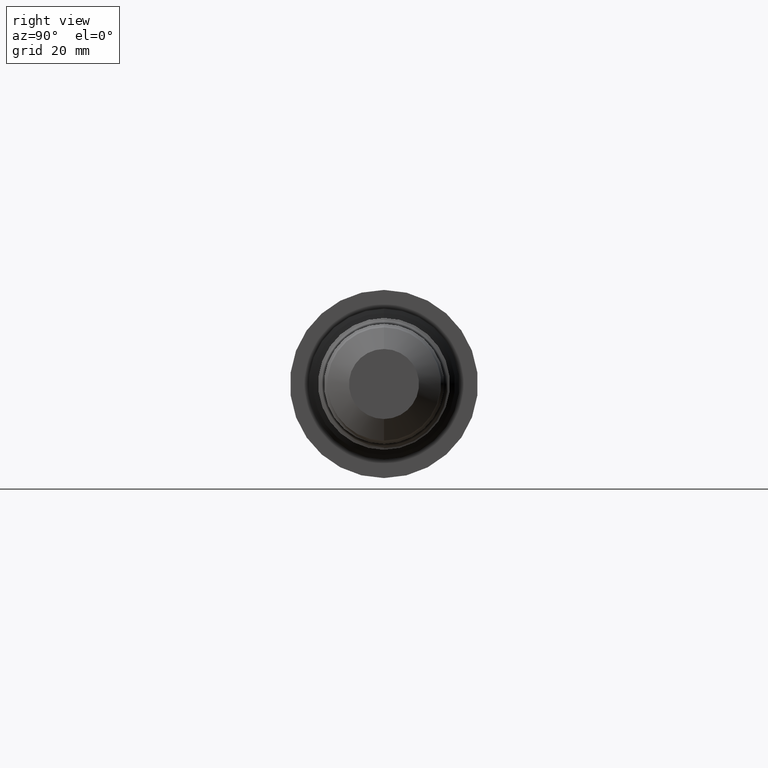
[diagram: clean part render]
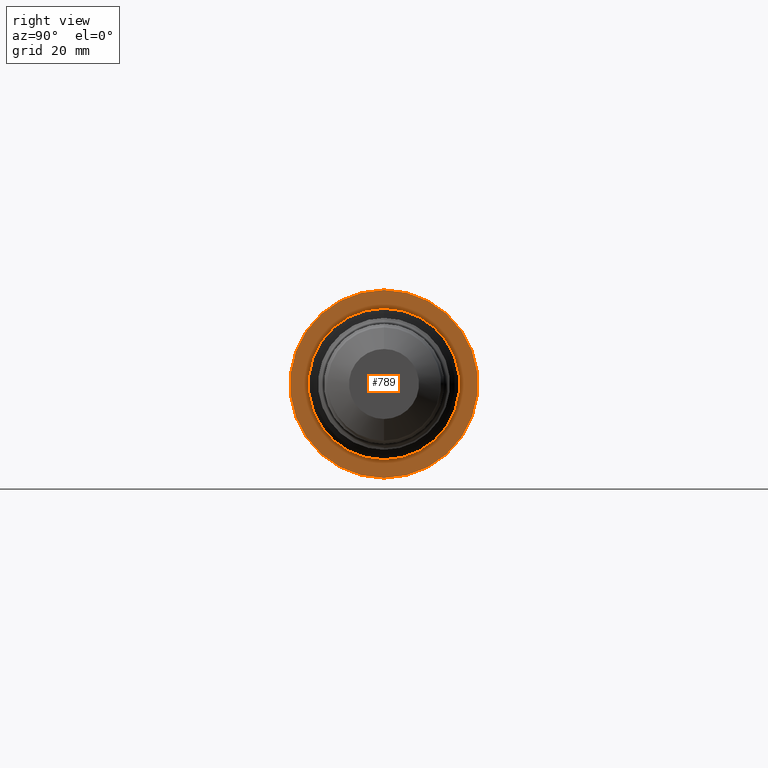
[diagram: same view with one face highlighted and labeled with its STEP entity id]
A machine part, right view. The second image highlights one B-rep face of the part: STEP entity #789.
In plain terms, the highlighted planar face has unit normal (-1, 0, -0).
Its self-contained STEP definition (entity closure, byte-faithful):
#3 = EDGE_CURVE ( 'NONE', #258, #892, #356, .T. ) ;
#36 = EDGE_CURVE ( 'NONE', #123, #223, #493, .T. ) ;
#50 = EDGE_LOOP ( 'NONE', ( #108, #73 ) ) ;
#73 = ORIENTED_EDGE ( 'NONE', *, *, #36, .T. ) ;
#87 = FACE_OUTER_BOUND ( 'NONE', #632, .T. ) ;
#96 = CIRCLE ( 'NONE', #280, 0.8625000000000000444 ) ;
#99 = EDGE_CURVE ( 'NONE', #892, #258, #96, .T. ) ;
#107 = AXIS2_PLACEMENT_3D ( 'NONE', #364, #556, #654 ) ;
#108 = ORIENTED_EDGE ( 'NONE', *, *, #600, .T. ) ;
#110 = FACE_BOUND ( 'NONE', #50, .T. ) ;
#123 = VERTEX_POINT ( 'NONE', #494 ) ;
#223 = VERTEX_POINT ( 'NONE', #936 ) ;
#246 = CARTESIAN_POINT ( 'NONE',  ( 3.172000000000000597, 1.056257864264592206E-16, -0.8625000000000000444 ) ) ;
#258 = VERTEX_POINT ( 'NONE', #695 ) ;
#268 = CIRCLE ( 'NONE', #909, 0.6941386159038315240 ) ;
#280 = AXIS2_PLACEMENT_3D ( 'NONE', #394, #326, #400 ) ;
#326 = DIRECTION ( 'NONE',  ( -1.000000000000000000, -0.0000000000000000000, -0.0000000000000000000 ) ) ;
#348 = AXIS2_PLACEMENT_3D ( 'NONE', #772, #701, #689 ) ;
#356 = CIRCLE ( 'NONE', #502, 0.8625000000000000444 ) ;
#364 = CARTESIAN_POINT ( 'NONE',  ( 3.172000000000001041, 0.8625000000000000444, 0.0000000000000000000 ) ) ;
#394 = CARTESIAN_POINT ( 'NONE',  ( 3.172000000000000597, 0.0000000000000000000, 0.0000000000000000000 ) ) ;
#400 = DIRECTION ( 'NONE',  ( 0.0000000000000000000, 0.0000000000000000000, 1.000000000000000000 ) ) ;
#493 = CIRCLE ( 'NONE', #348, 0.6941386159038315240 ) ;
#494 = CARTESIAN_POINT ( 'NONE',  ( 3.172000000000001041, 8.500746341312013096E-17, -0.6941386159038315240 ) ) ;
#502 = AXIS2_PLACEMENT_3D ( 'NONE', #679, #611, #904 ) ;
#556 = DIRECTION ( 'NONE',  ( -1.000000000000000000, 0.0000000000000000000, -0.0000000000000000000 ) ) ;
#570 = DIRECTION ( 'NONE',  ( 0.0000000000000000000, 0.0000000000000000000, 1.000000000000000000 ) ) ;
#595 = CARTESIAN_POINT ( 'NONE',  ( 3.172000000000001041, 0.0000000000000000000, 0.0000000000000000000 ) ) ;
#600 = EDGE_CURVE ( 'NONE', #223, #123, #268, .T. ) ;
#611 = DIRECTION ( 'NONE',  ( -1.000000000000000000, -0.0000000000000000000, -0.0000000000000000000 ) ) ;
#632 = EDGE_LOOP ( 'NONE', ( #691, #690 ) ) ;
#654 = DIRECTION ( 'NONE',  ( -0.0000000000000000000, 0.0000000000000000000, 1.000000000000000000 ) ) ;
#679 = CARTESIAN_POINT ( 'NONE',  ( 3.172000000000000597, 0.0000000000000000000, 0.0000000000000000000 ) ) ;
#689 = DIRECTION ( 'NONE',  ( 0.0000000000000000000, 0.0000000000000000000, 1.000000000000000000 ) ) ;
#690 = ORIENTED_EDGE ( 'NONE', *, *, #99, .F. ) ;
#691 = ORIENTED_EDGE ( 'NONE', *, *, #3, .F. ) ;
#695 = CARTESIAN_POINT ( 'NONE',  ( 3.172000000000000597, 0.0000000000000000000, 0.8625000000000000444 ) ) ;
#701 = DIRECTION ( 'NONE',  ( -1.000000000000000000, -0.0000000000000000000, -0.0000000000000000000 ) ) ;
#772 = CARTESIAN_POINT ( 'NONE',  ( 3.172000000000001041, 0.0000000000000000000, 0.0000000000000000000 ) ) ;
#789 = ADVANCED_FACE ( 'NONE', ( #87, #110 ), #855, .F. ) ;
#855 = PLANE ( 'NONE',  #107 ) ;
#873 = DIRECTION ( 'NONE',  ( -1.000000000000000000, -0.0000000000000000000, -0.0000000000000000000 ) ) ;
#892 = VERTEX_POINT ( 'NONE', #246 ) ;
#904 = DIRECTION ( 'NONE',  ( 0.0000000000000000000, 0.0000000000000000000, 1.000000000000000000 ) ) ;
#909 = AXIS2_PLACEMENT_3D ( 'NONE', #595, #873, #570 ) ;
#936 = CARTESIAN_POINT ( 'NONE',  ( 3.172000000000001041, 0.0000000000000000000, 0.6941386159038315240 ) ) ;